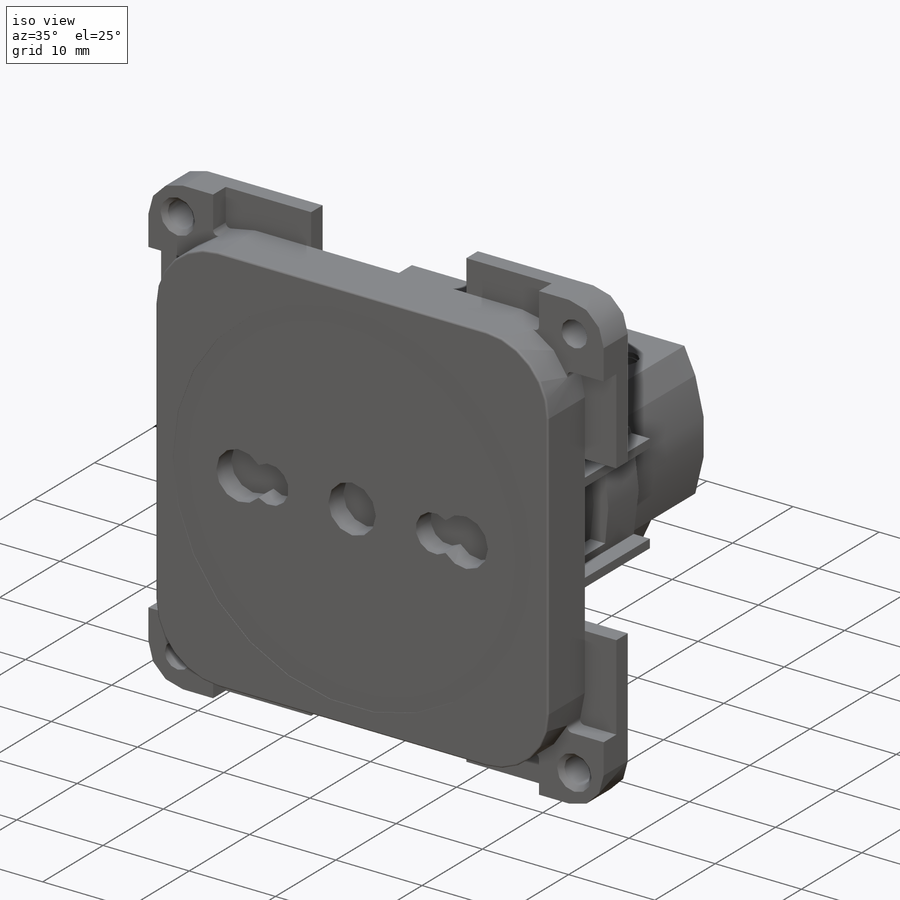
[diagram: iso view]
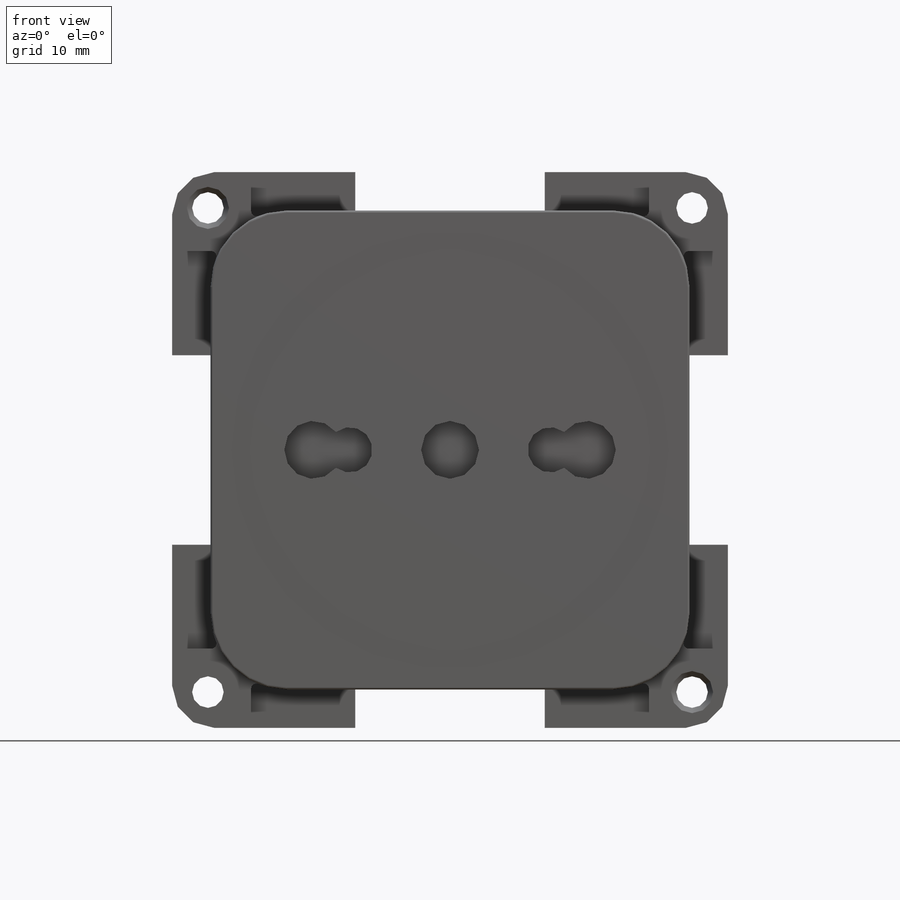
[diagram: front view]
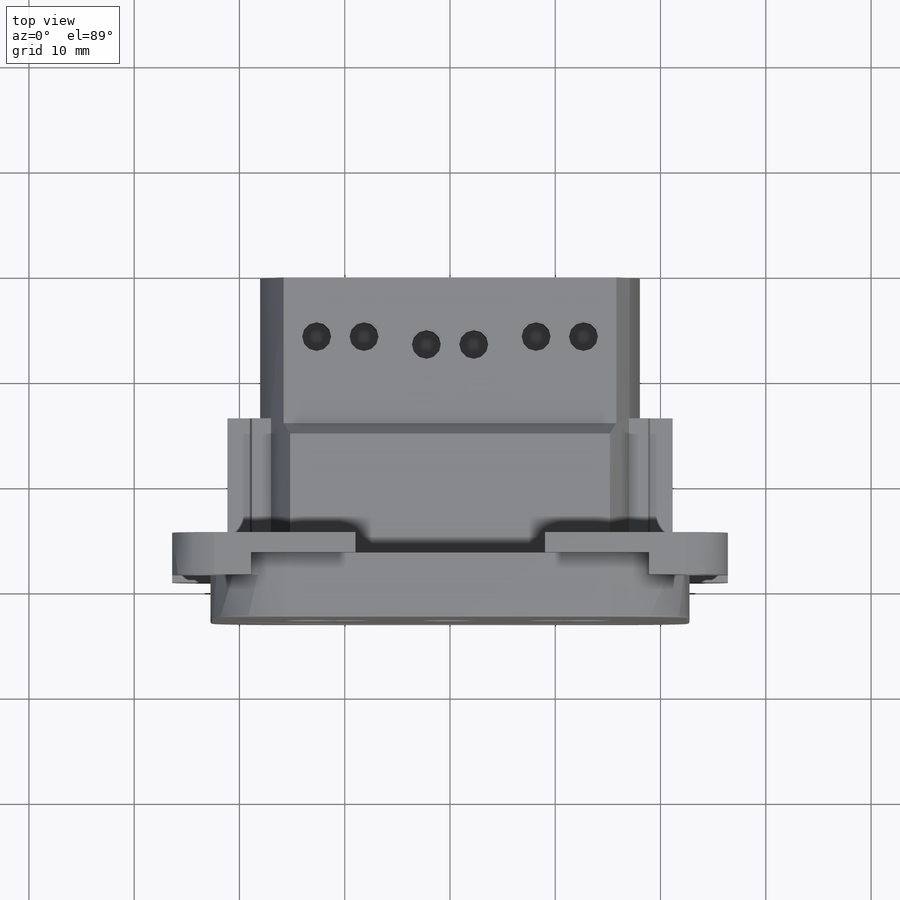
[diagram: top view]
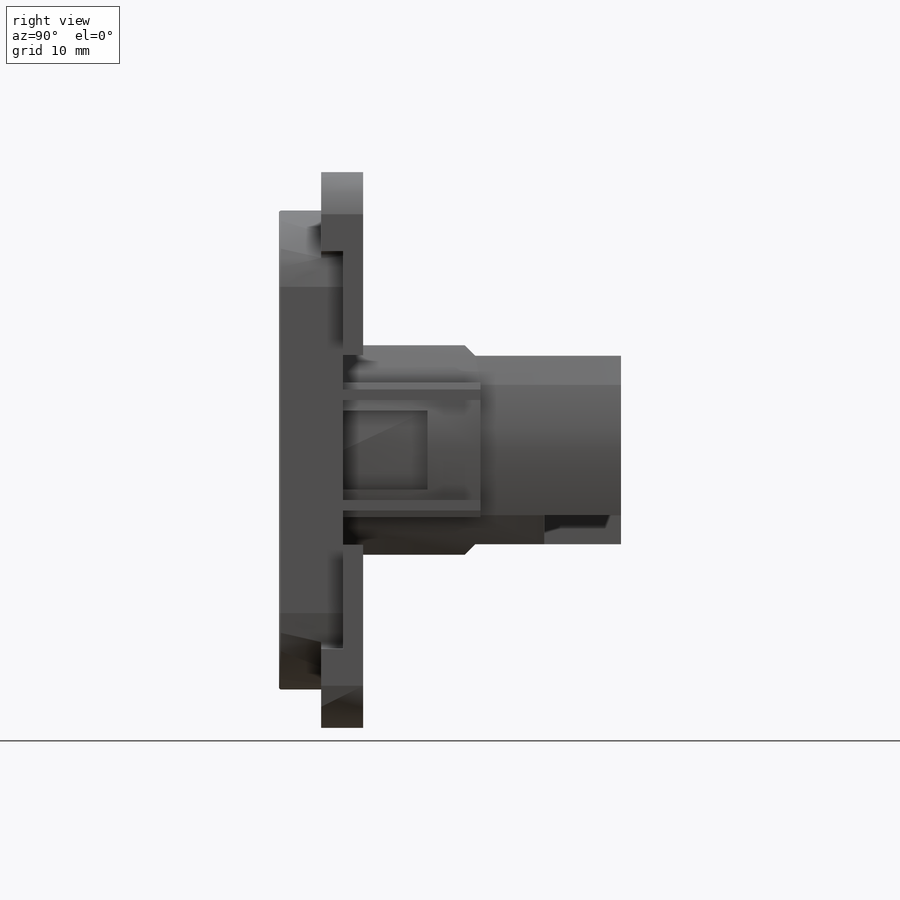
[diagram: right view]
SOLIDWORKS PART (.sldprt)
format: sldprt  version: not decoded by parser v0  size: 788,480 bytes
history: native  units: mm
features: sketch x20, cut_extrude x12, extrude x6, fillet x4, chamfer x2, material x1, hole x1, pattern_circular x1, mirror x1 (+12 scaffold rows collapsed)
feature tree (60):
  scaffold x12  (default folders/planes/origin — collapsed)
  material  "Plain Carbon Steel"
  sketch  "Sketch1"  dims[D1=45.5mm]
  extrude  "Boss-Extrude1"  Depth=6.1mm
  fillet  "Fillet2"  Radius=7.25mm
  sketch  "Sketch4"  dims[D1=1.6mm D2=1.6mm]
  cut_extrude  "Cut-Extrude2"  Depth=1.75mm
  sketch  "Sketch5"  dims[c1.D1=5.5mm c1.D2=5.5mm c1.D3=4.3mm c1.D4=4.3mm c2.D2=26.0mm c2.D4=14.75mm]
  cut_extrude  "Cut-Extrude3"  [1 undecoded]
  sketch  "Sketch6"  dims[D1=41.5mm]
  cut_extrude  "Cut-Extrude4"  Depth=0.035mm
  sketch  "Sketch7"  dims[c1.D1=53.0mm c1.D2=17.4mm c2.D1=26.4mm c2.D3=26.4mm]
  extrude  "Boss-Extrude2"  Depth=1.9mm
  sketch  "Sketch8"  dims[D1=7.5mm]
  extrude  "Boss-Extrude3"  Depth=2.1mm
  fillet  "Fillet6"  Radius=4mm
  hole  "Ø3.0 (3) Diameter Hole1"  Diameter=3mm Depth=12.7mm
  sketch  "Sketch11"  dims[D1=23.0mm]
  sketch  "Sketch10"  dims[hole-wizard template sketch: 47 standard entries collapsed; hole parameters kept: c15.Hole Depth=12.7mm c15.D3=~14.816244mm c15.Drill Angle=118.0deg]
  pattern_circular  "CirPattern1"  Count=4 Angle=360deg
  sketch  "Sketch12"  dims[D1=18.16mm D2=12.75mm]
  extrude  "Boss-Extrude4"  Depth=14.8mm
  sketch  "Sketch13"  dims[c1.D3=11.5mm c1.D4=5.75mm c1.D1=1.7mm c1.D2=1.0mm c2.D4=1.0mm]
  cut_extrude  "Cut-Extrude5"  [1 undecoded]
  sketch  "Sketch14"  dims[D1=8.0mm D2=7.5mm]
  cut_extrude  "Cut-Extrude6"  [1 undecoded]
  mirror  "Mirror1"
  sketch  "Sketch22"
  cut_extrude  "Cut-Extrude12"  Depth=1.85mm
  sketch  "Sketch15"  dims[D1=9.95mm D2=9.95mm]
  extrude  "Boss-Extrude5"  Depth=16.15mm
  chamfer  "Chamfer1"  Distance=1mm Angle=45deg
  sketch  "Sketch16"  dims[D1=0.0mm]
  extrude  "Boss-Extrude6"  Depth=13.85mm
  sketch  "Sketch17"  dims[D1=2.75mm D2=10.75mm]
  cut_extrude  "Cut-Extrude7"  Depth=7.29mm
  sketch  "Sketch18"  dims[c1.D1=5.25mm c1.D2=5.25mm c1.D3=5.25mm c2.D2=2.3mm c2.D3=4.4mm c2.D4=20.4mm]
  cut_extrude  "Cut-Extrude8"  Depth=2.5mm
  sketch  "Sketch19"  dims[D1=1.0mm D2=7.0mm D3=2.25mm D4=0.5mm D5=1.0mm]
  cut_extrude  "Cut-Extrude9"  Depth=0.5mm
  sketch  "Sketch20"  dims[c1.D1=2.75mm c1.D2=2.75mm c1.D3=2.75mm c2.D2=23.0mm c2.D3=22.0mm c2.D4=4.5mm c2.D5=16.35mm c2.D6=~22.495095mm c3.D3=22.25mm c3.D6=~23.137265mm c3.D2=23.0mm]
  cut_extrude  "Cut-Extrude10"  Depth=6mm
  chamfer  "Chamfer2"  Distance=0.5mm Angle=45deg
  fillet  "Fillet7"  Radius=0.5mm
  fillet  "Fillet8"  Radius=0.1875mm
  sketch  "Sketch21"  dims[D1=~0.15625mm D2=~0.15625mm D3=~0.15625mm D4=~0.15625mm D5=~0.15625mm D6=~0.15625mm]
  cut_extrude  "Cut-Extrude11"  Depth=0.5mm
  sketch  "Sketch23"  dims[D1=40.0mm]
  cut_extrude  "Cut-Extrude13"  [1 undecoded]
decode coverage: 41 of 47 modeling features carry decoded parameters
note: ~ marks probable driven/reference dimensions
note: 4 parameter values undecoded
summary: no parameter record found for 4 features
note: suppression state not decoded; provenance and decode notes live in map.json
